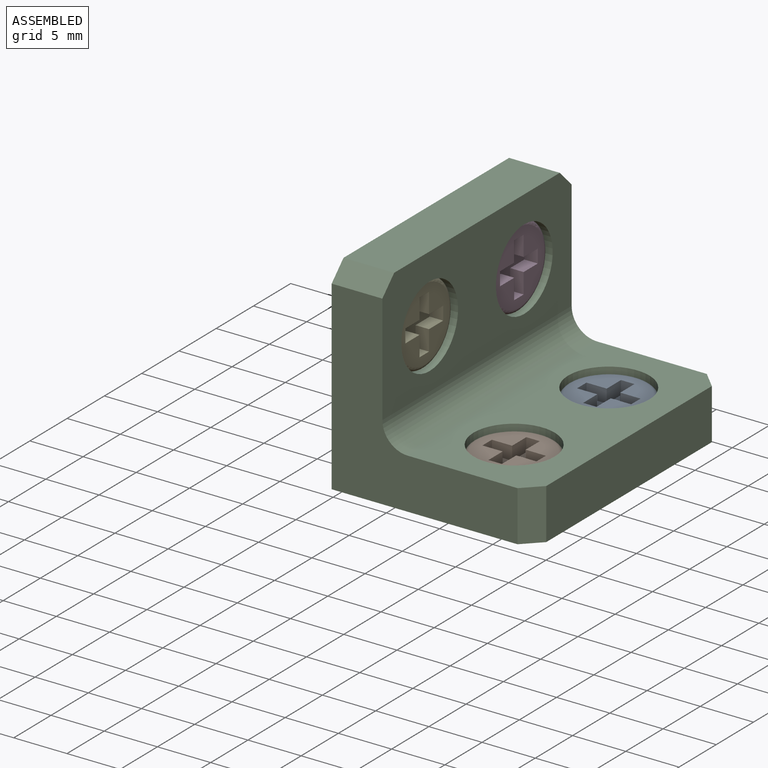
[diagram: assembled view]
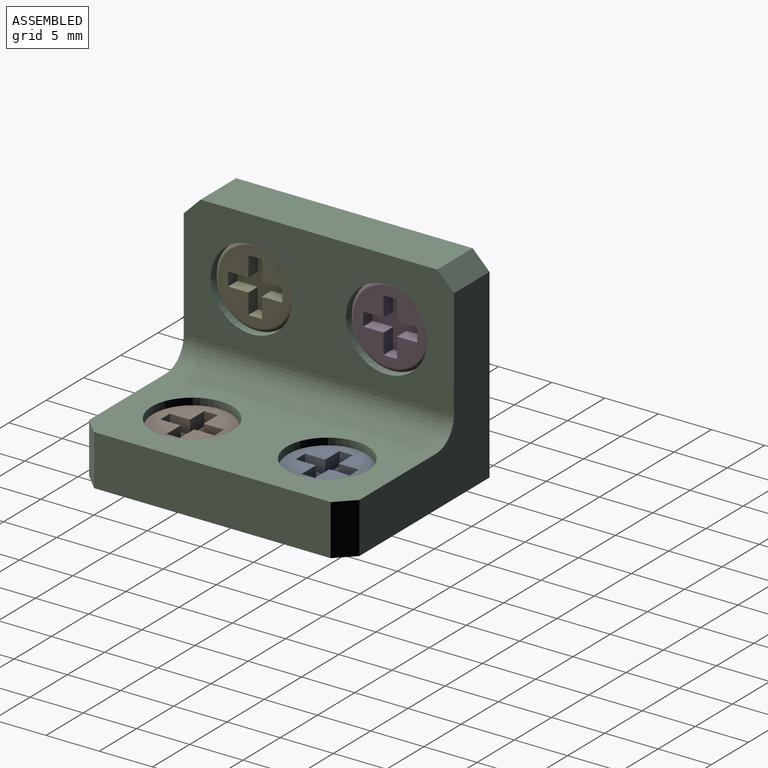
[diagram: assembled view, second angle]
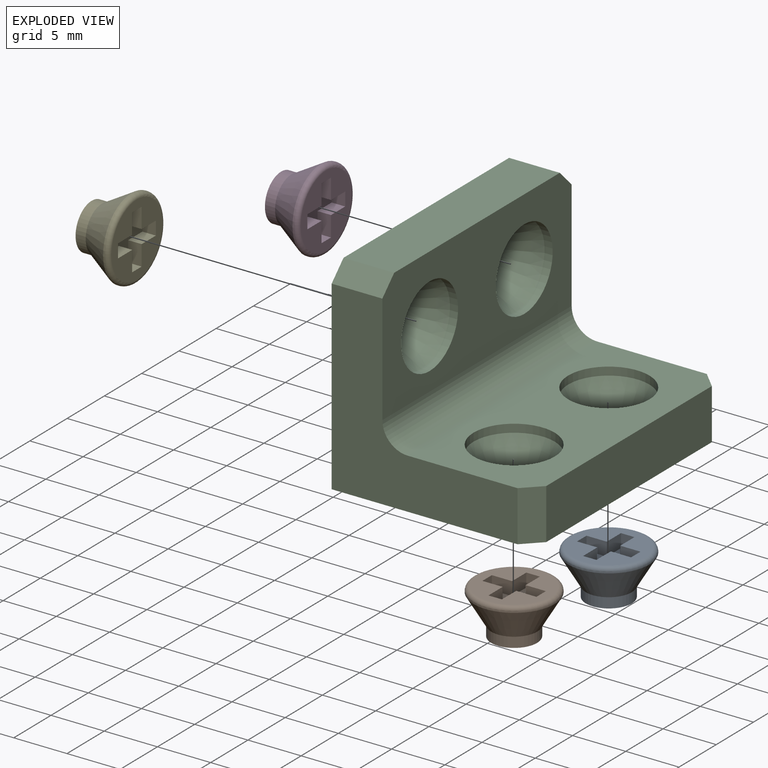
[diagram: exploded view]
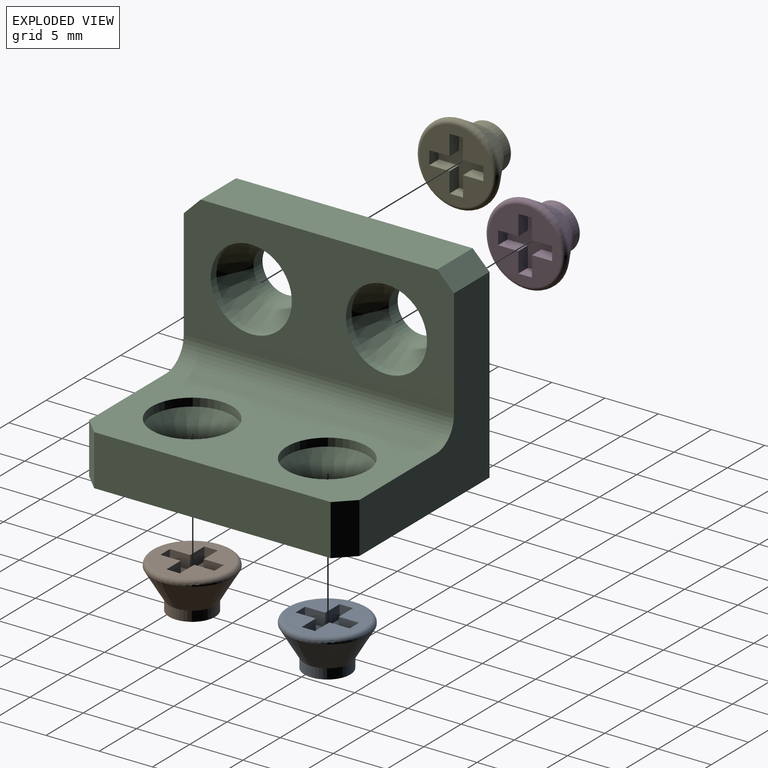
[diagram: exploded view, second angle]
ASSEMBLY  parts=5 mates=4
PART A: 19 faces, bbox 8.2x8.2x4.3 mm
  f0: plane 6.83x6.83mm, normal (0,0,1), area 25.3mm2, adj f5,f6,f7,f8,f9,f10,f11,f12
  f1: plane 4.32x4.32mm, normal (0,0,-1), area 14.6mm2, adj f2
  f2: cylinder r=2.16mm len=4.32mm, axis (0,0,-1), area 12.9mm2, adj f1,f3
  f3: cone r=3.81mm half-angle=30.6deg, axis (0,0,1), area 60.9mm2, adj f2,f4
  f4: cylinder r=3.81mm len=7.62mm, axis (0,0,-1), area 2.7mm2, adj f3,f18
  f5: plane 1.91x1.27mm, normal (1,0,0), area 2.4mm2, adj f0,f6,f16,f17
  f6: plane 1.91x1.27mm, normal (0,-1,0), area 2.4mm2, adj f0,f5,f7,f17
  f7: plane 1.27x1.27mm, normal (1,0,0), area 1.6mm2, adj f0,f6,f8,f17
  f8: plane 1.91x1.27mm, normal (0,1,0), area 2.4mm2, adj f0,f7,f9,f17
  f9: plane 1.91x1.27mm, normal (1,0,0), area 2.4mm2, adj f0,f8,f10,f17
  f10: plane 1.27x1.27mm, normal (0,1,0), area 1.6mm2, adj f0,f9,f11,f17
  f11: plane 1.91x1.27mm, normal (-1,0,0), area 2.4mm2, adj f0,f10,f12,f17
  f12: plane 1.91x1.27mm, normal (0,1,0), area 2.4mm2, adj f0,f11,f13,f17
  f13: plane 1.27x1.27mm, normal (-1,0,0), area 1.6mm2, adj f0,f12,f14,f17
  f14: plane 1.91x1.27mm, normal (0,-1,0), area 2.4mm2, adj f0,f13,f15,f17
  f15: plane 1.91x1.27mm, normal (-1,0,0), area 2.4mm2, adj f0,f14,f16,f17
  f16: plane 1.27x1.27mm, normal (0,-1,0), area 1.6mm2, adj f0,f5,f15,f17
  f17: plane 5.08x5.08mm, normal (0,0,1), area 11.3mm2, adj f5,f6,f7,f8,f9,f10,f11,f12
  f18: torus R=3.41mm, axis (0,0,-1), area 14.4mm2, adj f0,f4
PART B: same geometry as A
PART C: 25 faces, bbox 19.1x25.4x19.1 mm
  f0: cylinder r=2.29mm len=4.57mm, axis (0,0,1), area 17.3mm2, adj f1,f9
  f1: cone r=3.81mm half-angle=28.6deg, axis (0,0,1), area 61mm2, adj f0,f2
  f2: cylinder r=3.81mm len=7.62mm, axis (0,0,1), area 18.2mm2, adj f1,f11
  f3: cylinder r=2.29mm len=4.57mm, axis (1,0,0), area 17.3mm2, adj f4,f8
  f4: cone r=3.81mm half-angle=28.6deg, axis (1,0,0), area 61mm2, adj f3,f5
  f5: cylinder r=3.81mm len=7.62mm, axis (1,0,0), area 18.2mm2, adj f4,f6
  f6: plane 25.4x11.91mm, normal (1,0,0), area 208.7mm2, adj f5,f7,f12,f13,f14,f17,f23,f24
  f7: plane 22.23x4.76mm, normal (0,0,1), area 105.8mm2, adj f6,f8,f23,f24
  f8: plane 25.4x19.05mm, normal (-1,0,0), area 448.5mm2, adj f3,f7,f9,f13,f14,f15,f23,f24
  f9: plane 25.4x19.05mm, normal (0,0,-1), area 448.5mm2, adj f0,f8,f10,f13,f14,f18,f21,f22
  f10: plane 22.23x4.76mm, normal (1,0,0), area 105.8mm2, adj f9,f11,f21,f22
  f11: plane 25.4x11.91mm, normal (0,0,1), area 208.7mm2, adj f2,f10,f12,f13,f14,f20,f21,f22
  f12: cylinder r=2.38mm len=25.4mm, axis (0,1,0), area 95mm2, adj f6,f11,f13,f14
  f13: plane 17.46x17.46mm, normal (0,-1,0), area 144.9mm2, adj f6,f8,f9,f11,f12,f22,f24
  f14: plane 17.46x17.46mm, normal (0,1,0), area 144.9mm2, adj f6,f8,f9,f11,f12,f21,f23
  f15: cylinder r=2.29mm len=4.57mm, axis (1,0,0), area 17.3mm2, adj f8,f16
  f16: cone r=3.81mm half-angle=28.6deg, axis (1,0,0), area 61mm2, adj f15,f17
  f17: cylinder r=3.81mm len=7.62mm, axis (1,0,0), area 18.2mm2, adj f6,f16
  f18: cylinder r=2.29mm len=4.57mm, axis (0,0,1), area 17.3mm2, adj f9,f19
  f19: cone r=3.81mm half-angle=28.6deg, axis (0,0,1), area 61mm2, adj f18,f20
  f20: cylinder r=3.81mm len=7.62mm, axis (0,0,1), area 18.2mm2, adj f11,f19
  f21: plane 4.76x1.59mm, normal (0.71,0.71,0), area 10.7mm2, adj f9,f10,f11,f14
  f22: plane 4.76x1.59mm, normal (0.71,-0.71,0), area 10.7mm2, adj f9,f10,f11,f13
  f23: plane 4.76x1.59mm, normal (0,0.71,0.71), area 10.7mm2, adj f6,f7,f8,f14
  f24: plane 4.76x1.59mm, normal (0,-0.71,0.71), area 10.7mm2, adj f6,f7,f8,f13
PART D: same geometry as A
PART E: same geometry as A
PLACE A t=(3.46,6.35,0)mm
PLACE B t=(3.46,-6.35,0)mm
PLACE C t=(-9.24,-6.35,0)mm
PLACE D rot(axis=(0,1,0),90deg) t=(-9.24,6.35,12.7)mm
PLACE E rot(axis=(0,1,0),90deg) t=(-9.24,-6.35,12.7)mm
MATE fastened C.f18 <-> B.f2  axis (0,0,-1) through (3.46,-6.35,0)mm
MATE fastened A.f2 <-> C.f0  axis (0,0,-1) through (3.46,6.35,0)mm
MATE fastened C.f15 <-> E.f2  axis (-1,0,0) through (-9.24,-6.35,12.7)mm
MATE fastened D.f2 <-> C.f3  axis (-1,0,0) through (-9.24,6.35,12.7)mm
